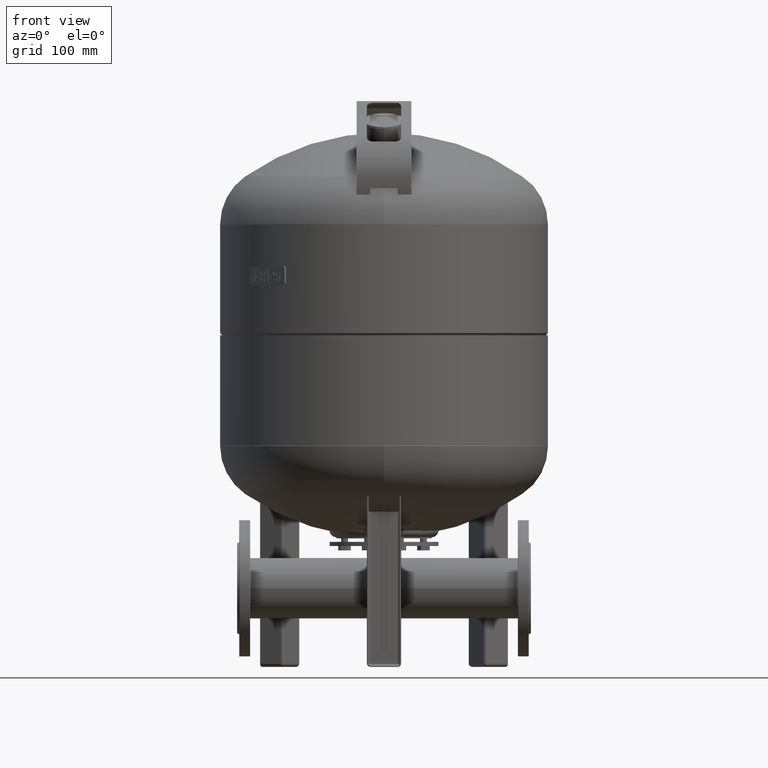
[diagram: clean part render]
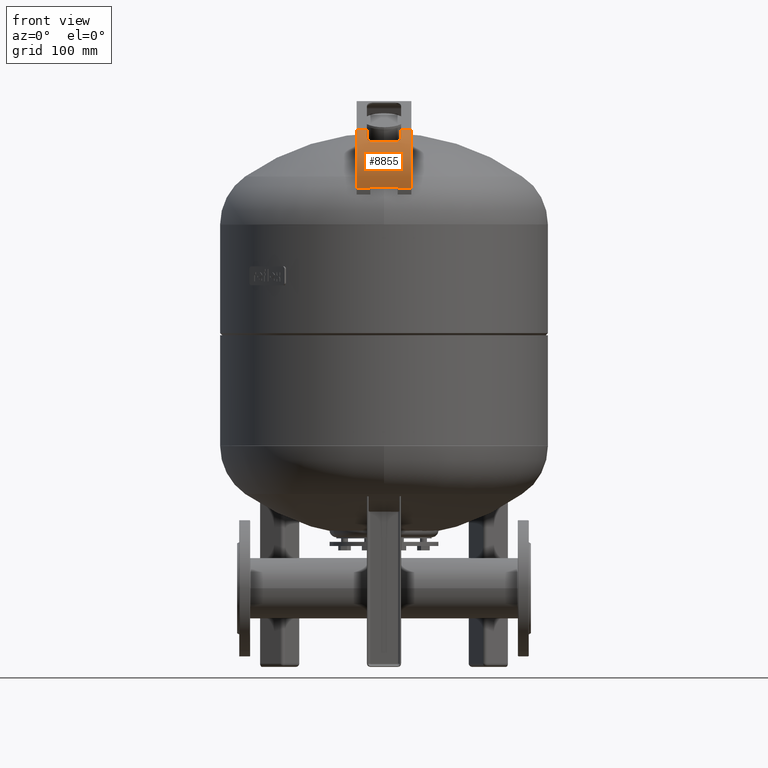
[diagram: same view with one face highlighted and labeled with its STEP entity id]
A machine part, front view. The second image highlights one B-rep face of the part: STEP entity #8855.
In plain terms, the highlighted cylindrical surface (partial cylindrical patch) has radius 79 mm, axis along (1, -0, -0).
Its self-contained STEP definition (entity closure, byte-faithful):
#8163=CARTESIAN_POINT('',(19.999999999999950,-230.314956429002510,701.249359975729590));
#8164=VERTEX_POINT('',#8163);
#8171=CARTESIAN_POINT('',(-20.000000000000046,-230.314956429002510,701.249359975729590));
#8172=VERTEX_POINT('',#8171);
#8173=CARTESIAN_POINT('',(-20.000000000000046,-230.314956429002510,701.249359975729590));
#8174=DIRECTION('',(1.0,0.0,0.0));
#8175=VECTOR('',#8174,40.0);
#8176=LINE('',#8173,#8175);
#8177=EDGE_CURVE('',#8172,#8164,#8176,.T.);
#8383=CARTESIAN_POINT('',(-25.000000000000007,-207.472408261487490,774.979192514444430));
#8384=VERTEX_POINT('',#8383);
#8391=CARTESIAN_POINT('',(-17.000000000000036,-213.057498292336530,769.096769554108730));
#8392=VERTEX_POINT('',#8391);
#8393=CARTESIAN_POINT('',(-17.000000000000036,-213.057498292336450,769.096769554108730));
#8394=CARTESIAN_POINT('',(-18.001098037693428,-213.057533406364340,769.096728545297420));
#8395=CARTESIAN_POINT('',(-18.994389289908078,-212.933977990060780,769.242020480752560));
#8396=CARTESIAN_POINT('',(-20.846478049911731,-212.449498082455480,769.799739337249550));
#8397=CARTESIAN_POINT('',(-21.688261161398458,-212.096949137306810,770.202129829453610));
#8398=CARTESIAN_POINT('',(-23.154927435061772,-211.180275869910670,771.215807010979920));
#8399=CARTESIAN_POINT('',(-23.760069219120307,-210.618956021871210,771.822679323830810));
#8400=CARTESIAN_POINT('',(-24.462487950084562,-209.600431946808810,772.881480335047630));
#8401=CARTESIAN_POINT('',(-24.663795012076246,-209.193420257121430,773.296112169762520));
#8402=CARTESIAN_POINT('',(-24.932595877861122,-208.348333116119620,774.136925628619570));
#8403=CARTESIAN_POINT('',(-25.000029814050304,-207.913196104270440,774.560278983362420));
#8404=CARTESIAN_POINT('',(-25.000000000000007,-207.472408261487490,774.979192514444430));
#8405=B_SPLINE_CURVE_WITH_KNOTS('',3,(#8393,#8394,#8395,#8396,#8397,#8398,#8399,#8400,#8401,#8402,#8403,#8404),.UNSPECIFIED.,.F.,.U.,(4,2,2,2,2,4),(0.0,0.300329411744744,0.596044484812661,0.899555431535718,1.082712991981320,1.264749568333981),.UNSPECIFIED.);
#8406=EDGE_CURVE('',#8392,#8384,#8405,.T.);
#8431=CARTESIAN_POINT('',(16.999999999999957,-213.057498292336450,769.096769554108730));
#8432=VERTEX_POINT('',#8431);
#8433=CARTESIAN_POINT('',(16.999999999999957,-213.057498292336450,769.096769554108730));
#8434=DIRECTION('',(-1.0,0.0,0.0));
#8435=VECTOR('',#8434,33.999999999999993);
#8436=LINE('',#8433,#8435);
#8437=EDGE_CURVE('',#8432,#8392,#8436,.T.);
#8642=CARTESIAN_POINT('',(24.999999999999964,-207.472408261487490,774.979192514444430));
#8643=VERTEX_POINT('',#8642);
#8644=CARTESIAN_POINT('',(24.999999999999922,-207.472408261487490,774.979192514444430));
#8645=CARTESIAN_POINT('',(25.000052143342899,-208.243325042544090,774.246532854677300));
#8646=CARTESIAN_POINT('',(24.793327339327650,-208.994514968431450,773.501832381226220));
#8647=CARTESIAN_POINT('',(23.980301755713171,-210.381582949493890,772.075662546357530));
#8648=CARTESIAN_POINT('',(23.375306670411828,-211.003156183258110,771.408601283054510));
#8649=CARTESIAN_POINT('',(21.900263560729488,-211.992338539046390,770.319993648011520));
#8650=CARTESIAN_POINT('',(21.067202024343082,-212.367320565451790,769.893543037172090));
#8651=CARTESIAN_POINT('',(19.662136493641501,-212.768285450692500,769.433057620865160));
#8652=CARTESIAN_POINT('',(19.154013798091633,-212.874353787970050,769.310008719779830));
#8653=CARTESIAN_POINT('',(18.095566499509555,-213.020366726913010,769.140228775071930));
#8654=CARTESIAN_POINT('',(17.548063254248063,-213.057517515936720,769.096747103337860));
#8655=CARTESIAN_POINT('',(16.999999999999957,-213.057498292336450,769.096769554108730));
#8656=B_SPLINE_CURVE_WITH_KNOTS('',3,(#8644,#8645,#8646,#8647,#8648,#8649,#8650,#8651,#8652,#8653,#8654,#8655),.UNSPECIFIED.,.F.,.U.,(4,2,2,2,2,4),(0.0,0.319059959376750,0.643429384093297,0.942865666803827,1.102285567286538,1.266952028297452),.UNSPECIFIED.);
#8657=EDGE_CURVE('',#8643,#8432,#8656,.T.);
#8762=CARTESIAN_POINT('',(-3.131184E-014,-153.049929203743350,717.714947359117220));
#8763=DIRECTION('',(1.0,-2.041297E-016,-1.193991E-017));
#8764=DIRECTION('',(-9.268022E-017,-0.504527623815021,0.863395550606771));
#8765=AXIS2_PLACEMENT_3D('',#8762,#8763,#8764);
#8766=CYLINDRICAL_SURFACE('',#8765,79.000000000000014);
#8767=CARTESIAN_POINT('',(24.999999999999961,-192.907611485130050,785.923195857052060));
#8768=VERTEX_POINT('',#8767);
#8769=CARTESIAN_POINT('',(24.999999999999968,-153.049929203743350,717.714947359117220));
#8770=DIRECTION('',(1.0,-4.675973E-017,8.001969E-017));
#8771=DIRECTION('',(-9.268022E-017,-0.504527623815021,0.863395550606771));
#8772=AXIS2_PLACEMENT_3D('',#8769,#8770,#8771);
#8773=CIRCLE('',#8772,79.000000000000014);
#8774=EDGE_CURVE('',#8768,#8643,#8773,.T.);
#8775=ORIENTED_EDGE('',*,*,#8774,.T.);
#8776=ORIENTED_EDGE('',*,*,#8657,.T.);
#8777=ORIENTED_EDGE('',*,*,#8437,.T.);
#8778=ORIENTED_EDGE('',*,*,#8406,.T.);
#8779=CARTESIAN_POINT('',(-25.000000000000039,-192.907611485130050,785.923195857052060));
#8780=VERTEX_POINT('',#8779);
#8781=CARTESIAN_POINT('',(-25.000000000000032,-153.049929203743350,717.714947359117220));
#8782=DIRECTION('',(-1.0,4.675973E-017,-8.001969E-017));
#8783=DIRECTION('',(-9.268022E-017,-0.504527623815021,0.863395550606771));
#8784=AXIS2_PLACEMENT_3D('',#8781,#8782,#8783);
#8785=CIRCLE('',#8784,79.000000000000014);
#8786=EDGE_CURVE('',#8384,#8780,#8785,.T.);
#8787=ORIENTED_EDGE('',*,*,#8786,.T.);
#8788=CARTESIAN_POINT('',(-40.000000000000036,-192.907611485130050,785.923195857052060));
#8789=VERTEX_POINT('',#8788);
#8790=CARTESIAN_POINT('',(-40.000000000000036,-192.907611485130050,785.923195857052060));
#8791=DIRECTION('',(1.0,0.0,0.0));
#8792=VECTOR('',#8791,14.999999999999996);
#8793=LINE('',#8790,#8792);
#8794=EDGE_CURVE('',#8789,#8780,#8793,.T.);
#8795=ORIENTED_EDGE('',*,*,#8794,.F.);
#8796=CARTESIAN_POINT('',(-40.000000000000050,-230.236529584129270,700.885546843393850));
#8797=VERTEX_POINT('',#8796);
#8798=CARTESIAN_POINT('',(-40.000000000000028,-153.049929203743350,717.714947359117220));
#8799=DIRECTION('',(1.0,-4.675973E-017,8.001969E-017));
#8800=DIRECTION('',(-9.268022E-017,-0.504527623815021,0.863395550606771));
#8801=AXIS2_PLACEMENT_3D('',#8798,#8799,#8800);
#8802=CIRCLE('',#8801,79.000000000000014);
#8803=EDGE_CURVE('',#8789,#8797,#8802,.T.);
#8804=ORIENTED_EDGE('',*,*,#8803,.T.);
#8805=CARTESIAN_POINT('',(-20.000000000000046,-230.236529584129270,700.885546843393850));
#8806=VERTEX_POINT('',#8805);
#8807=CARTESIAN_POINT('',(-20.000000000000046,-230.236529584129270,700.885546843393850));
#8808=DIRECTION('',(-1.0,0.0,0.0));
#8809=VECTOR('',#8808,20.000000000000004);
#8810=LINE('',#8807,#8809);
#8811=EDGE_CURVE('',#8806,#8797,#8810,.T.);
#8812=ORIENTED_EDGE('',*,*,#8811,.F.);
#8813=CARTESIAN_POINT('',(-20.000000000000032,-153.049929203743350,717.714947359117220));
#8814=DIRECTION('',(-1.0,4.675973E-017,-8.001969E-017));
#8815=DIRECTION('',(-9.268022E-017,-0.504527623815021,0.863395550606771));
#8816=AXIS2_PLACEMENT_3D('',#8813,#8814,#8815);
#8817=CIRCLE('',#8816,79.000000000000014);
#8818=EDGE_CURVE('',#8806,#8172,#8817,.T.);
#8819=ORIENTED_EDGE('',*,*,#8818,.T.);
#8820=ORIENTED_EDGE('',*,*,#8177,.T.);
#8821=CARTESIAN_POINT('',(19.999999999999950,-230.236529584129270,700.885546843393850));
#8822=VERTEX_POINT('',#8821);
#8823=CARTESIAN_POINT('',(19.999999999999975,-153.049929203743350,717.714947359117220));
#8824=DIRECTION('',(1.0,-4.675973E-017,8.001969E-017));
#8825=DIRECTION('',(-9.268022E-017,-0.504527623815021,0.863395550606771));
#8826=AXIS2_PLACEMENT_3D('',#8823,#8824,#8825);
#8827=CIRCLE('',#8826,79.000000000000014);
#8828=EDGE_CURVE('',#8164,#8822,#8827,.T.);
#8829=ORIENTED_EDGE('',*,*,#8828,.T.);
#8830=CARTESIAN_POINT('',(39.999999999999950,-230.236529584129270,700.885546843393850));
#8831=VERTEX_POINT('',#8830);
#8832=CARTESIAN_POINT('',(39.999999999999950,-230.236529584129270,700.885546843393850));
#8833=DIRECTION('',(-1.0,0.0,0.0));
#8834=VECTOR('',#8833,20.0);
#8835=LINE('',#8832,#8834);
#8836=EDGE_CURVE('',#8831,#8822,#8835,.T.);
#8837=ORIENTED_EDGE('',*,*,#8836,.F.);
#8838=CARTESIAN_POINT('',(39.999999999999957,-192.907611485130050,785.923195857052060));
#8839=VERTEX_POINT('',#8838);
#8840=CARTESIAN_POINT('',(39.999999999999957,-153.049929203743350,717.714947359117220));
#8841=DIRECTION('',(-1.0,4.675973E-017,-8.001969E-017));
#8842=DIRECTION('',(-9.268022E-017,-0.504527623815021,0.863395550606771));
#8843=AXIS2_PLACEMENT_3D('',#8840,#8841,#8842);
#8844=CIRCLE('',#8843,79.000000000000014);
#8845=EDGE_CURVE('',#8831,#8839,#8844,.T.);
#8846=ORIENTED_EDGE('',*,*,#8845,.T.);
#8847=CARTESIAN_POINT('',(24.999999999999961,-192.907611485130050,785.923195857052060));
#8848=DIRECTION('',(1.0,0.0,0.0));
#8849=VECTOR('',#8848,14.999999999999996);
#8850=LINE('',#8847,#8849);
#8851=EDGE_CURVE('',#8768,#8839,#8850,.T.);
#8852=ORIENTED_EDGE('',*,*,#8851,.F.);
#8853=EDGE_LOOP('',(#8775,#8776,#8777,#8778,#8787,#8795,#8804,#8812,#8819,#8820,#8829,#8837,#8846,#8852));
#8854=FACE_OUTER_BOUND('',#8853,.T.);
#8855=ADVANCED_FACE('',(#8854),#8766,.T.);